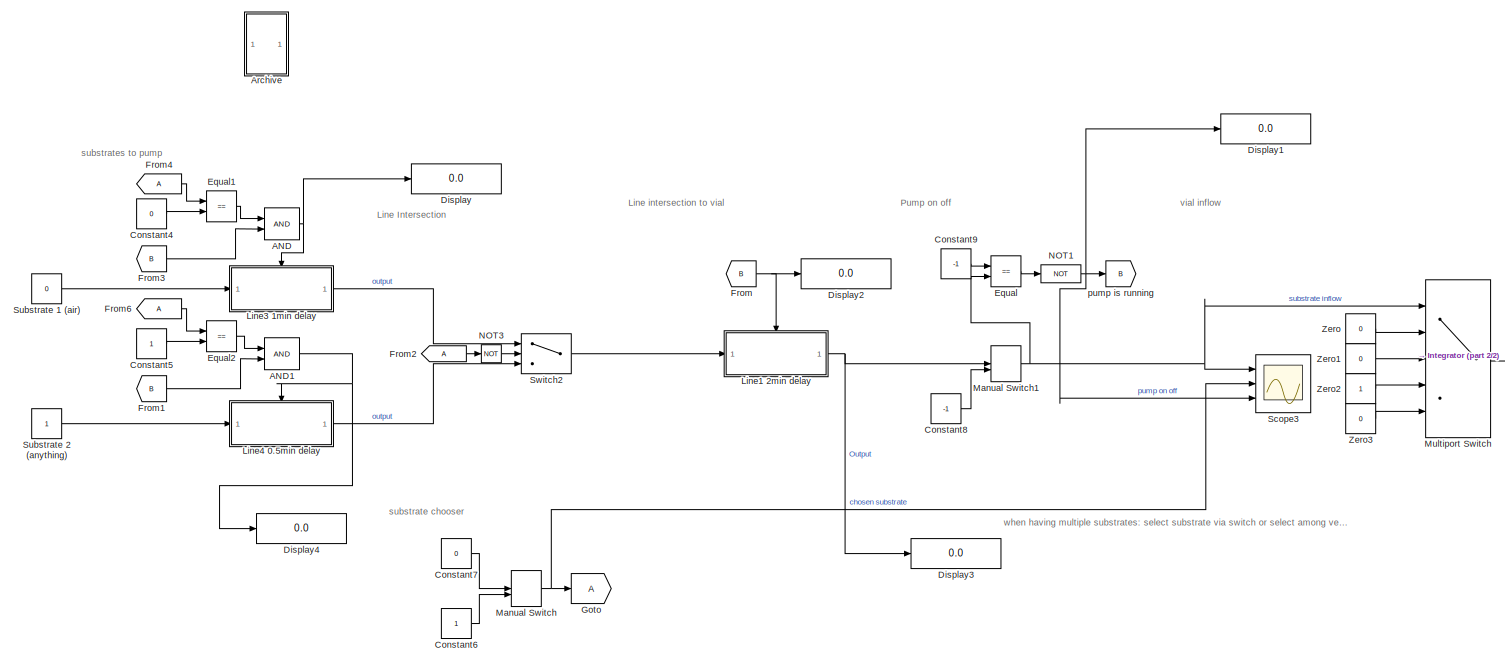
[diagram: root canvas - part 1/2, most of the canvas]
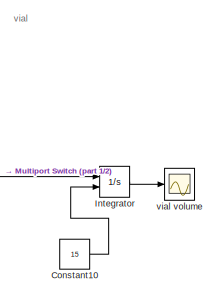
[diagram: root canvas - part 2/2, middle right region]
MODEL slx_362b63bf709d
KIND model
CONFIG AbsTol = auto
CONFIG EnableMultiTasking = off
CONFIG FixedStep = 1e-3
CONFIG MaxStep = auto
CONFIG MinStep = auto
CONFIG RelTol = 1e-3
CONFIG SampleTimeConstraint = Unconstrained
CONFIG SolverName = ode4
CONFIG StartTime = 0.0
CONFIG StopTime = 100
BLOCK [Logic] AND
  AllPortsSameDT = off
  IconShape = distinctive
  OutDataTypeStr = boolean
  Ports = [2, 1]
BLOCK [Logic] AND1
  AllPortsSameDT = off
  IconShape = distinctive
  OutDataTypeStr = boolean
  Ports = [2, 1]
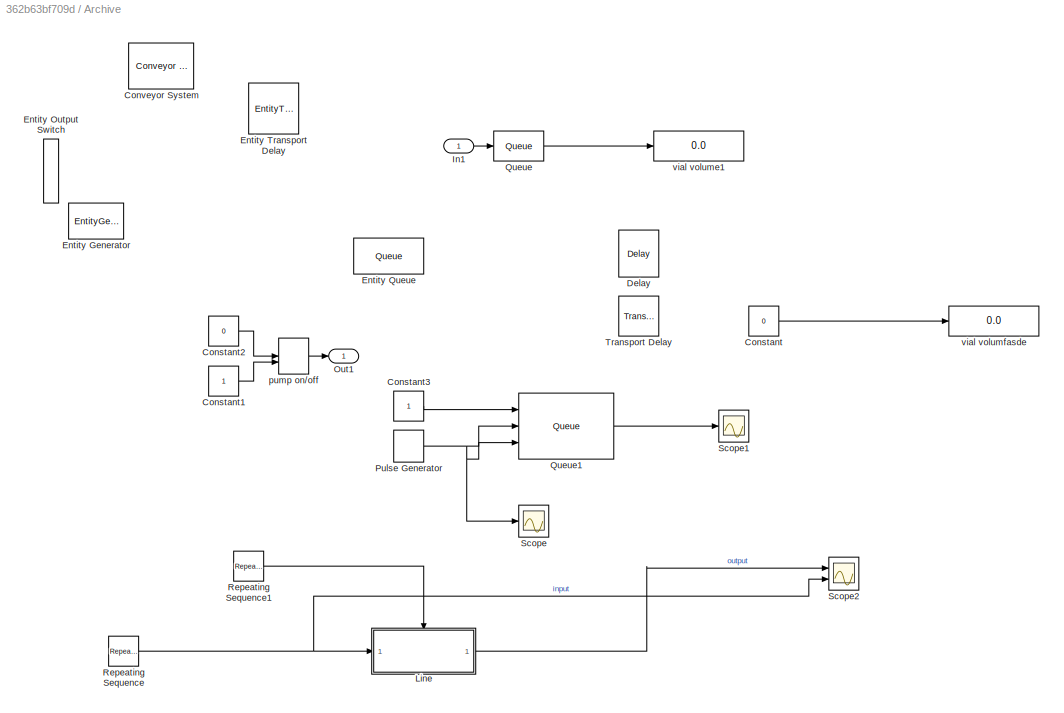
BLOCK [SubSystem] Archive
  Commented = on
  Ports = [1, 1]
  RequestExecContextInheritance = off
BLOCK [Constant] Archive/Constant
  Commented = on
  Value = 0
BLOCK [Constant] Archive/Constant1
  Commented = on
BLOCK [Constant] Archive/Constant2
  Commented = on
  Value = 0
BLOCK [Constant] Archive/Constant3
  Commented = on
BLOCK [Reference] Archive/Conveyor System  REF=sldelib/Conveyor System
  Commented = on
  Ports = [1, 1]
  SourceBlock = sldelib/Conveyor System
  SourceProductBaseCode = SE
  SourceType = desConveyorSystem
BLOCK [Delay] Archive/Delay
  Commented = on
  DelayLengthSource = Input port
  DelayLengthUpperLimit = 1000000
  InputPortMap = u0,p1
  Ports = [2, 1]
BLOCK [EntityGenerator] Archive/Entity Generator
  Commented = on
  EntityType = Structured
  EntityTypeName = Entity
  OutputPortMap = o3
  OutputPortMessageModes = m
  Ports = [0, 1]
BLOCK [EntityOutputSwitch] Archive/Entity Output Switch
  Commented = on
  InputPortMap = u1
  InputPortMessageModes = m
  OutputPortMap = o0,o1
  OutputPortMessageModes = m,m
  Ports = [1, 2]
  SwitchAttributeName = Attribute1
BLOCK [Queue] Archive/Entity Queue
  Commented = on
  InputPortMap = u0
  InputPortMessageModes = m
  OutputPortMap = o5
  OutputPortMessageModes = m
  Ports = [1, 1]
BLOCK [EntityTransportDelay] Archive/Entity Transport Delay
  Commented = on
  InputPortMessageModes = m,n
  OutputPortMessageModes = m
  Ports = [2, 1]
BLOCK [Inport] Archive/In1
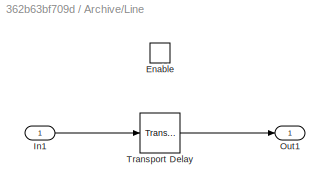
BLOCK [SubSystem] Archive/Line
  Commented = on
  Ports = [1, 1, 1]
  RequestExecContextInheritance = off
  TreatAsAtomicUnit = on
BLOCK [EnablePort] Archive/Line/Enable
  Ports = []
BLOCK [Inport] Archive/Line/In1
BLOCK [Outport] Archive/Line/Out1
BLOCK [TransportDelay] Archive/Line/Transport Delay
  DelayTime = 0.5
  InitialOutput = -1
  Ports = [1, 1]
BLOCK [Outport] Archive/Out1
BLOCK [DiscretePulseGenerator] Archive/Pulse Generator
  Commented = on
  Period = 10e-3
  Ports = [0, 1]
  PulseType = Time based
  PulseWidth = 10
BLOCK [Queue] Archive/Queue
  Capacity = 16
  Commented = on
  InputPortMap = u0
  InputPortMessageModes = m
  OutputPortMap = o5
  OutputPortMessageModes = m
  OverwriteOldest = on
  Ports = [1, 1]
BLOCK [Reference] Archive/Queue1  REF=dspbuff3/Queue
  Commented = on
  Ports = [3, 1]
  SourceBlock = dspbuff3/Queue
  SourceProductBaseCode = DS
  SourceType = Queue
BLOCK [Reference] Archive/Repeating Sequence  REF=simulink/Sources/Repeating
Sequence
  Commented = on
  Ports = [0, 1]
  SourceBlock = simulink/Sources/Repeating\nSequence
  SourceProductBaseCode = SL
  SourceType = Repeating table
BLOCK [Reference] Archive/Repeating Sequence1  REF=simulink/Sources/Repeating
Sequence
  Commented = on
  Ports = [0, 1]
  SourceBlock = simulink/Sources/Repeating\nSequence
  SourceProductBaseCode = SL
  SourceType = Repeating table
BLOCK [Scope] Archive/Scope
  Commented = on
  Floating = off
  NumInputPorts = 1
  Ports = [1]
  ScopeSpecificationString = Simulink.scopes.TimeScopeBlockCfg('CurrentConfiguration', extmgr.ConfigurationSet(extmgr.Configuration('Core','General UI',true),extmgr.Configuration('Core','Source UI',true),extmgr.Configuration('Sources','WiredSimulink',true),extmgr.Configuration('Visuals','Time Domain',true,'SerializedDisplays',{struct('MinYLimReal','-0.125','MaxYLimReal','1.125','YLabelReal','','MinYLimMag','0.00000','MaxYLimM...<+1350ch>
BLOCK [Scope] Archive/Scope1
  Commented = on
  Floating = off
  NumInputPorts = 1
  Ports = [1]
  ScopeSpecificationString = Simulink.scopes.TimeScopeBlockCfg('CurrentConfiguration', extmgr.ConfigurationSet(extmgr.Configuration('Core','General UI',true),extmgr.Configuration('Core','Source UI',true),extmgr.Configuration('Sources','WiredSimulink',true,'DataLoggingVariableName','ScopeData1'),extmgr.Configuration('Visuals','Time Domain',true,'SerializedDisplays',{struct('MinYLimReal','-0.125','MaxYLimReal','1.125','YLabelRe...<+1383ch>
BLOCK [Scope] Archive/Scope2
  Commented = on
  Floating = off
  NumInputPorts = 2
  Ports = [2]
  ScopeSpecificationString = Simulink.scopes.TimeScopeBlockCfg('CurrentConfiguration', extmgr.ConfigurationSet(extmgr.Configuration('Core','General UI',true),extmgr.Configuration('Core','Source UI',true),extmgr.Configuration('Sources','WiredSimulink',true,'DataLoggingVariableName','ScopeData1'),extmgr.Configuration('Visuals','Time Domain',true,'SerializedDisplays',{struct('MinYLimReal','-1.5','MaxYLimReal','3.5','YLabelReal',...<+1405ch>
BLOCK [TransportDelay] Archive/Transport Delay
  Commented = on
  Ports = [1, 1]
BLOCK [ManualSwitch] Archive/pump on//off
  Commented = on
  CurrentSetting = 0
BLOCK [Display] Archive/vial volume1
  Commented = on
  Decimation = 1
  Ports = [1]
BLOCK [Display] Archive/vial volumfasde
  Commented = on
  Decimation = 1
  Ports = [1]
BLOCK [Constant] Constant10
  Value = 15
BLOCK [Constant] Constant4
  Value = 0
BLOCK [Constant] Constant5
BLOCK [Constant] Constant6
BLOCK [Constant] Constant7
  Value = 0
BLOCK [Constant] Constant8
  Value = -1
BLOCK [Constant] Constant9
  Value = -1
BLOCK [Display] Display
  Decimation = 1
  Ports = [1]
BLOCK [Display] Display1
  Decimation = 1
  Ports = [1]
BLOCK [Display] Display2
  Decimation = 1
  Ports = [1]
BLOCK [Display] Display3
  Decimation = 1
  Ports = [1]
BLOCK [Display] Display4
  Decimation = 1
  Ports = [1]
BLOCK [RelationalOperator] Equal
  InputSameDT = off
  Operator = ==
  OutDataTypeStr = boolean
  Ports = [2, 1]
  RndMeth = Simplest
BLOCK [RelationalOperator] Equal1
  InputSameDT = off
  Operator = ==
  OutDataTypeStr = boolean
  Ports = [2, 1]
  RndMeth = Simplest
BLOCK [RelationalOperator] Equal2
  InputSameDT = off
  Operator = ==
  OutDataTypeStr = boolean
  Ports = [2, 1]
  RndMeth = Simplest
BLOCK [From] From
  GotoTag = B
BLOCK [From] From1
  GotoTag = B
BLOCK [From] From2
BLOCK [From] From3
  GotoTag = B
BLOCK [From] From4
BLOCK [From] From6
BLOCK [Goto] Goto
BLOCK [Integrator] Integrator
  InitialConditionSource = external
  Ports = [2, 1]
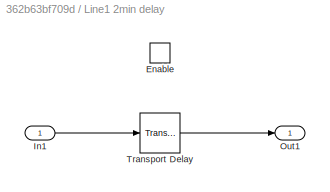
BLOCK [SubSystem] Line1 2min delay
  Ports = [1, 1, 1]
  RequestExecContextInheritance = off
  TreatAsAtomicUnit = on
BLOCK [EnablePort] Line1 2min delay/Enable
  Ports = []
BLOCK [Inport] Line1 2min delay/In1
BLOCK [Outport] Line1 2min delay/Out1
BLOCK [TransportDelay] Line1 2min delay/Transport Delay
  DelayTime = 2
  Ports = [1, 1]
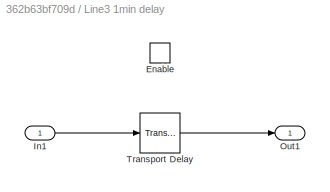
BLOCK [SubSystem] Line3 1min delay
  Ports = [1, 1, 1]
  RequestExecContextInheritance = off
  TreatAsAtomicUnit = on
BLOCK [EnablePort] Line3 1min delay/Enable
  Ports = []
BLOCK [Inport] Line3 1min delay/In1
BLOCK [Outport] Line3 1min delay/Out1
BLOCK [TransportDelay] Line3 1min delay/Transport Delay
  Ports = [1, 1]
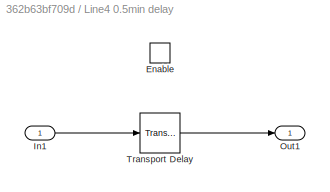
BLOCK [SubSystem] Line4 0.5min delay
  Ports = [1, 1, 1]
  RequestExecContextInheritance = off
  TreatAsAtomicUnit = on
BLOCK [EnablePort] Line4 0.5min delay/Enable
  Ports = []
BLOCK [Inport] Line4 0.5min delay/In1
BLOCK [Outport] Line4 0.5min delay/Out1
BLOCK [TransportDelay] Line4 0.5min delay/Transport Delay
  DelayTime = 0.5
  Ports = [1, 1]
BLOCK [ManualSwitch] Manual Switch
  CurrentSetting = 0
BLOCK [ManualSwitch] Manual Switch1
BLOCK [MultiPortSwitch] Multiport Switch
  DataPortForDefault = Additional data port
  DataPortIndices = {-1,0,1}
  DataPortOrder = Specify indices
  InputSameDT = off
  Ports = [5, 1]
  SaturateOnIntegerOverflow = off
BLOCK [Logic] NOT1
  AllPortsSameDT = off
  IconShape = distinctive
  Operator = NOT
  OutDataTypeStr = boolean
  Ports = [1, 1]
BLOCK [Logic] NOT3
  AllPortsSameDT = off
  IconShape = distinctive
  Operator = NOT
  OutDataTypeStr = boolean
  Ports = [1, 1]
BLOCK [Scope] Scope3
  Floating = off
  NumInputPorts = 3
  Ports = [3]
  ScopeSpecificationString = Simulink.scopes.TimeScopeBlockCfg('CurrentConfiguration', extmgr.ConfigurationSet(extmgr.Configuration('Core','General UI',true),extmgr.Configuration('Core','Source UI',true),extmgr.Configuration('Sources','WiredSimulink',true,'DataLoggingVariableName','ScopeData2'),extmgr.Configuration('Visuals','Time Domain',true,'SerializedDisplays',{struct('MinYLimReal','-1.25','MaxYLimReal','1.25','YLabelReal...<+1506ch>
BLOCK [Constant] Substrate 1 (air)
  Value = 0
BLOCK [Constant] Substrate 2 (anything)
BLOCK [Switch] Switch2
  Criteria = u2 > Threshold
  InputSameDT = off
  SaturateOnIntegerOverflow = off
BLOCK [Constant] Zero
  OutDataTypeStr = Inherit: Inherit via back propagation
  Value = 0
BLOCK [Constant] Zero1
  OutDataTypeStr = Inherit: Inherit via back propagation
  Value = 0
BLOCK [Constant] Zero2
  OutDataTypeStr = Inherit: Inherit via back propagation
BLOCK [Constant] Zero3
  OutDataTypeStr = Inherit: Inherit via back propagation
  Value = 0
BLOCK [Goto] pump is running
  GotoTag = B
BLOCK [Scope] vial volume
  Floating = off
  NumInputPorts = 1
  Ports = [1]
  ScopeSpecificationString = Simulink.scopes.TimeScopeBlockCfg('CurrentConfiguration', extmgr.ConfigurationSet(extmgr.Configuration('Core','General UI',true),extmgr.Configuration('Core','Source UI',true),extmgr.Configuration('Sources','WiredSimulink',true,'DataLoggingVariableName','ScopeData1'),extmgr.Configuration('Visuals','Time Domain',true),extmgr.Configuration('Tools','Plot Navigation',true),extmgr.Configuration('Tools',...<+40ch>
ANNOTATION (root): Line Intersection
ANNOTATION (root): Line intersection to vial
ANNOTATION (root): Pump on off
ANNOTATION (root): substrate chooser
ANNOTATION (root): substrates to pump
ANNOTATION (root): vial
ANNOTATION (root): vial inflow
ANNOTATION (root): when having multiple substrates: select substrate via switch or select among vectors: [1 0 0] for substrate 1 and [0 1 0] for substrate 2 goes to integrator
NET AND1:1 -> Display4:1, Line4 0.5min delay:enable
NET AND:1 -> Display:1, Line3 1min delay:enable
LINE Archive/Constant1:1 -> Archive/pump on//off:2
LINE Archive/Constant2:1 -> Archive/pump on//off:1
LINE Archive/Constant3:1 -> Archive/Queue1:1
LINE Archive/Constant:1 -> Archive/vial volumfasde:1
LINE Archive/In1:1 -> Archive/Queue:1
LINE Archive/Line/In1:1 -> Archive/Line/Transport Delay:1
LINE Archive/Line/Transport Delay:1 -> Archive/Line/Out1:1
LINE Archive/Line:1 -> Archive/Scope2:1
NET Archive/Pulse Generator:1 -> Archive/Queue1:2, Archive/Queue1:3, Archive/Scope:1
LINE Archive/Queue1:1 -> Archive/Scope1:1
LINE Archive/Queue:1 -> Archive/vial volume1:1
LINE Archive/Repeating Sequence1:1 -> Archive/Line:enable
NET Archive/Repeating Sequence:1 -> Archive/Line:1, Archive/Scope2:2
LINE Archive/pump on//off:1 -> Archive/Out1:1
LINE Constant10:1 -> Integrator:2
LINE Constant4:1 -> Equal1:2
LINE Constant5:1 -> Equal2:2
LINE Constant6:1 -> Manual Switch:2
LINE Constant7:1 -> Manual Switch:1
LINE Constant8:1 -> Manual Switch1:2
LINE Constant9:1 -> Equal:1
LINE Equal1:1 -> AND:1
LINE Equal2:1 -> AND1:1
LINE Equal:1 -> NOT1:1
LINE From1:1 -> AND1:2
LINE From2:1 -> NOT3:1
LINE From3:1 -> AND:2
LINE From4:1 -> Equal1:1
LINE From6:1 -> Equal2:1
NET From:1 -> Display2:1, Line1 2min delay:enable
LINE Integrator:1 -> vial volume:1
LINE Line1 2min delay/In1:1 -> Line1 2min delay/Transport Delay:1
LINE Line1 2min delay/Transport Delay:1 -> Line1 2min delay/Out1:1
NET Line1 2min delay:1 -> Display3:1, Manual Switch1:1
LINE Line3 1min delay/In1:1 -> Line3 1min delay/Transport Delay:1
LINE Line3 1min delay/Transport Delay:1 -> Line3 1min delay/Out1:1
LINE Line3 1min delay:1 -> Switch2:1
LINE Line4 0.5min delay/In1:1 -> Line4 0.5min delay/Transport Delay:1
LINE Line4 0.5min delay/Transport Delay:1 -> Line4 0.5min delay/Out1:1
LINE Line4 0.5min delay:1 -> Switch2:3
NET Manual Switch1:1 -> Equal:2, Multiport Switch:1, Scope3:1
NET Manual Switch:1 -> Goto:1, Scope3:2
LINE Multiport Switch:1 -> Integrator:1
NET NOT1:1 -> Display1:1, Scope3:3, pump is running:1
LINE NOT3:1 -> Switch2:2
LINE Substrate 1 (air):1 -> Line3 1min delay:1
LINE Substrate 2 (anything):1 -> Line4 0.5min delay:1
LINE Switch2:1 -> Line1 2min delay:1
LINE Zero1:1 -> Multiport Switch:3
LINE Zero2:1 -> Multiport Switch:4
LINE Zero3:1 -> Multiport Switch:5
LINE Zero:1 -> Multiport Switch:2
note: NET lines group one-source signal fan-out (src -> all destinations, sorted); 1:1 wires keep LINE
